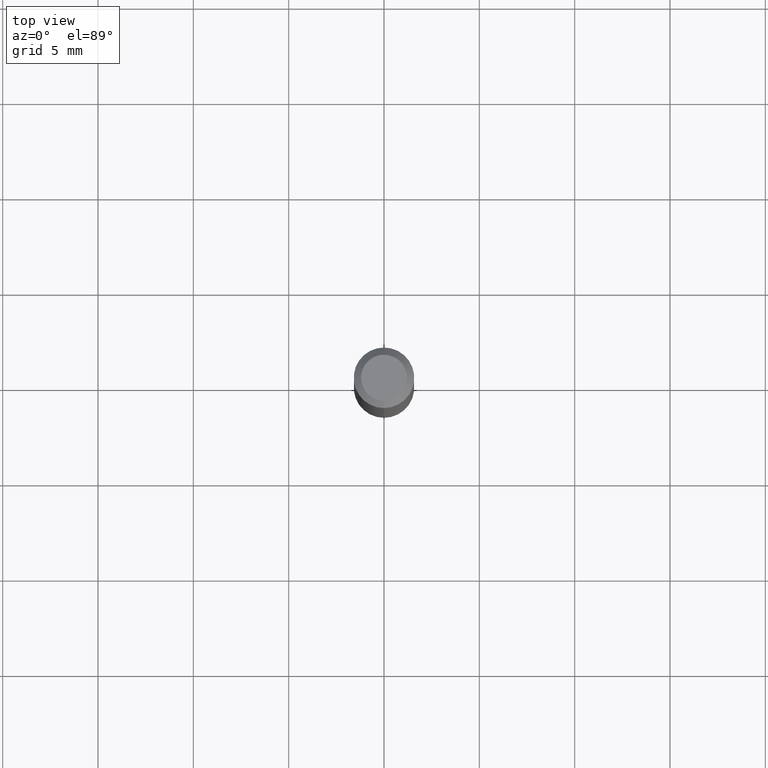
[diagram: clean part render]
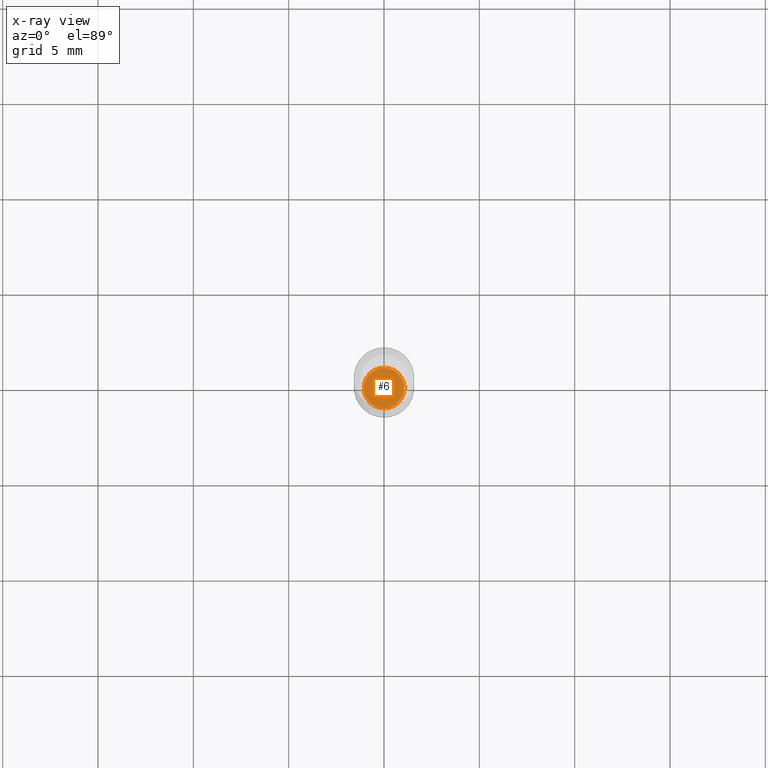
[diagram: x-ray — body ghosted, one internal face saturated and labeled with its STEP entity id]
A machine part, top view, then the same camera in x-ray: the body is ghosted and one INTERNAL B-rep face — a face not visible from any outside direction — is saturated and labeled: STEP entity #6.
In plain terms, the highlighted planar face has unit normal (-0, 0, 1).
Its self-contained STEP definition (entity closure, byte-faithful):
#6 = ADVANCED_FACE ( 'NONE', ( #111 ), #74, .F. ) ;
#9 = ORIENTED_EDGE ( 'NONE', *, *, #446, .F. ) ;
#40 = CARTESIAN_POINT ( 'NONE',  ( 3.044721224461018478E-29, -4.346733073444087600E-15, -1.245000000000000329 ) ) ;
#56 = DIRECTION ( 'NONE',  ( -2.445559216434552627E-29, 3.491351866220149979E-15, 1.000000000000000000 ) ) ;
#57 = EDGE_LOOP ( 'NONE', ( #9, #339 ) ) ;
#63 = CIRCLE ( 'NONE', #345, 0.04199999999999999567 ) ;
#66 = DIRECTION ( 'NONE',  ( -2.445559216434552627E-29, 3.491351866220149979E-15, 1.000000000000000000 ) ) ;
#68 = AXIS2_PLACEMENT_3D ( 'NONE', #418, #66, #113 ) ;
#74 = PLANE ( 'NONE',  #383 ) ;
#109 = CIRCLE ( 'NONE', #68, 0.04199999999999999567 ) ;
#111 = FACE_OUTER_BOUND ( 'NONE', #57, .T. ) ;
#113 = DIRECTION ( 'NONE',  ( -6.982962677686265922E-15, -1.000000000000000000, 6.504399984914913214E-15 ) ) ;
#133 = CARTESIAN_POINT ( 'NONE',  ( 3.044721224461018478E-29, -4.346733073444087600E-15, -1.245000000000000329 ) ) ;
#175 = CARTESIAN_POINT ( 'NONE',  ( 3.002043058586724733E-16, 0.04199999999999565192, -1.245000000000000551 ) ) ;
#210 = CARTESIAN_POINT ( 'NONE',  ( -2.932844324627926808E-16, -0.04200000000000434636, -1.244999999999999885 ) ) ;
#224 = DIRECTION ( 'NONE',  ( -6.982962677686265922E-15, -1.000000000000000000, 3.491351866220149979E-15 ) ) ;
#265 = DIRECTION ( 'NONE',  ( -2.445559216434552347E-29, 3.491351866220149979E-15, 1.000000000000000000 ) ) ;
#283 = DIRECTION ( 'NONE',  ( -6.982962677686265922E-15, -1.000000000000000000, 6.504399984914913214E-15 ) ) ;
#339 = ORIENTED_EDGE ( 'NONE', *, *, #389, .F. ) ;
#345 = AXIS2_PLACEMENT_3D ( 'NONE', #133, #56, #283 ) ;
#383 = AXIS2_PLACEMENT_3D ( 'NONE', #40, #265, #224 ) ;
#389 = EDGE_CURVE ( 'NONE', #398, #473, #109, .T. ) ;
#398 = VERTEX_POINT ( 'NONE', #175 ) ;
#418 = CARTESIAN_POINT ( 'NONE',  ( 3.044721224461018478E-29, -4.346733073444087600E-15, -1.245000000000000329 ) ) ;
#446 = EDGE_CURVE ( 'NONE', #473, #398, #63, .T. ) ;
#473 = VERTEX_POINT ( 'NONE', #210 ) ;